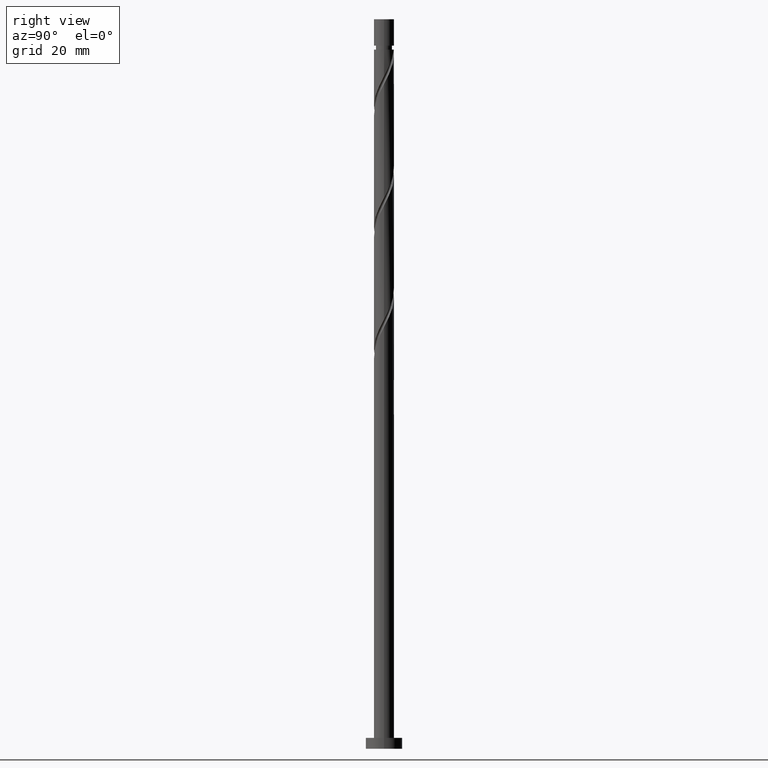
[diagram: clean part render]
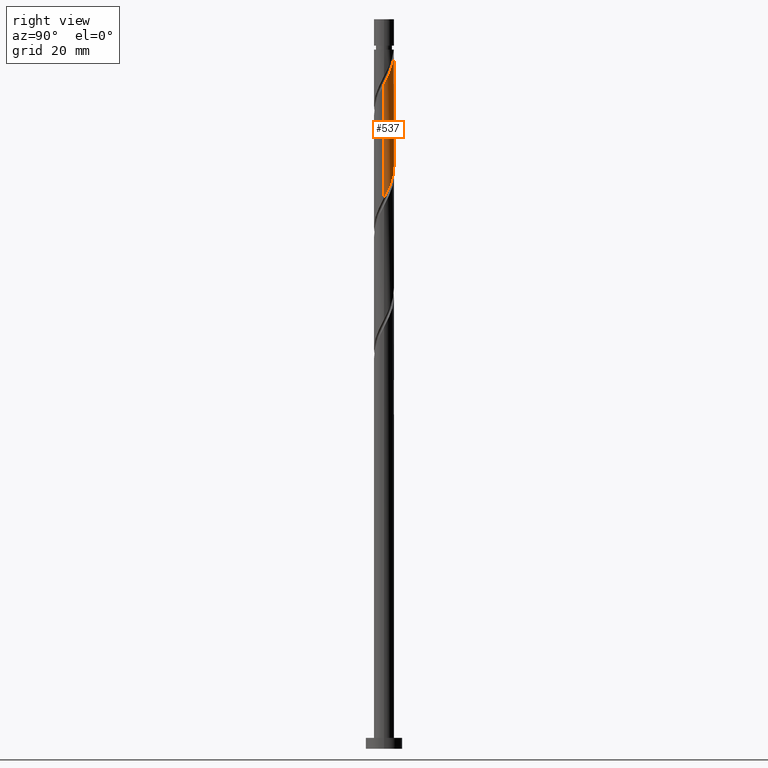
[diagram: same view with one face highlighted and labeled with its STEP entity id]
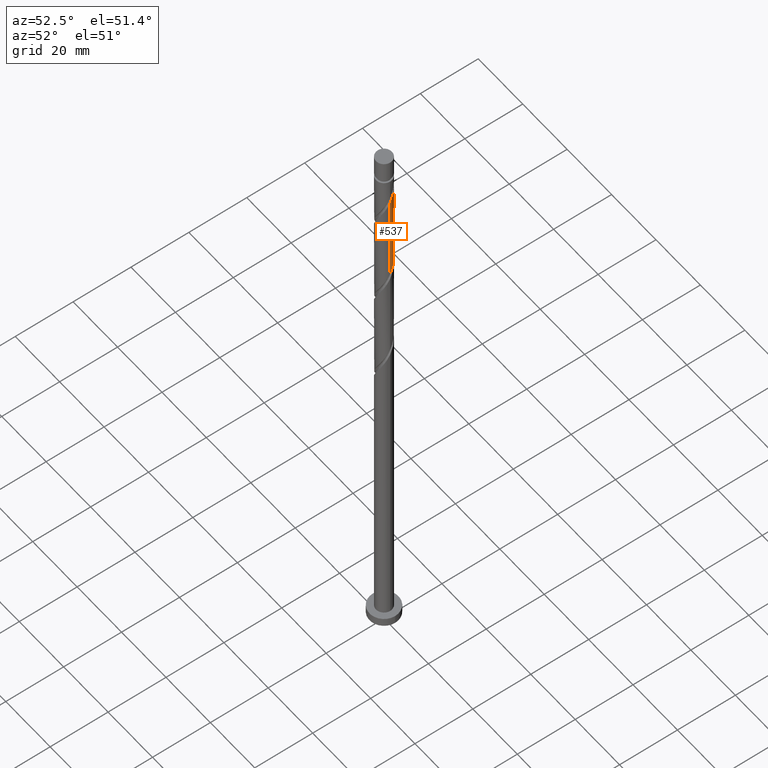
[diagram: same view with one face highlighted and labeled with its STEP entity id]
A machine part, right view. The second image highlights one B-rep face of the part: STEP entity #537.
A second angle (auxiliary view) of the same face is appended — the face is thin or edge-on in the first view.
In plain terms, the highlighted cylindrical surface (edge-blend (fillet) strip) has radius 2.75 mm, axis along (-0, -0, -1).
Its self-contained STEP definition (entity closure, byte-faithful):
#91 = CARTESIAN_POINT ( 'NONE',  ( -2.622954080360256679, 0.9020465714066743246, 165.9555286616371177 ) ) ;
#124 = VERTEX_POINT ( 'NONE', #1510 ) ;
#172 = VECTOR ( 'NONE', #1145, 1000.000000000000000 ) ;
#213 = DIRECTION ( 'NONE',  ( -0.000000000000000000, -0.000000000000000000, -1.000000000000000000 ) ) ;
#236 = CARTESIAN_POINT ( 'NONE',  ( -0.5302817939452952878, 2.722568152255369078, 160.3999731060816032 ) ) ;
#261 = CARTESIAN_POINT ( 'NONE',  ( 2.744807035947557150, 0.1689210922673411164, 151.3721953283038317 ) ) ;
#278 = CARTESIAN_POINT ( 'NONE',  ( 0.1689210922673453630, 2.744807035947560259, 190.2610842171927743 ) ) ;
#280 = FACE_OUTER_BOUND ( 'NONE', #1743, .T. ) ;
#321 = VERTEX_POINT ( 'NONE', #1159 ) ;
#374 = CARTESIAN_POINT ( 'NONE',  ( 0.1924396094106104460, 2.767045919639743445, 159.0110842171927459 ) ) ;
#375 = DIRECTION ( 'NONE',  ( -0.000000000000000000, -0.000000000000000000, -1.000000000000000000 ) ) ;
#410 = CARTESIAN_POINT ( 'NONE',  ( 2.750000000000004441, -2.841219044287791350E-16, 182.2530731175382357 ) ) ;
#415 = EDGE_CURVE ( 'NONE', #1612, #588, #1447, .T. ) ;
#450 = EDGE_CURVE ( 'NONE', #1612, #1133, #1593, .T. ) ;
#505 = CARTESIAN_POINT ( 'NONE',  ( -2.060316917994740926, 1.821426418339388675, 163.8721953283038317 ) ) ;
#515 = CARTESIAN_POINT ( 'NONE',  ( -2.461533167750521223, 1.226113560835245142, 165.2610842171927743 ) ) ;
#537 = ADVANCED_FACE ( 'NONE', ( #280 ), #1200, .T. ) ;
#539 = CARTESIAN_POINT ( 'NONE',  ( 1.820521580848700527, 2.092672286414963168, 186.7888619949704321 ) ) ;
#547 = CARTESIAN_POINT ( 'NONE',  ( 0.8735735816606146065, 2.607560008403386753, 188.8721953283039170 ) ) ;
#567 = CARTESIAN_POINT ( 'NONE',  ( 2.300112255140790651, 1.550180550263815071, 185.3999731060816032 ) ) ;
#588 = VERTEX_POINT ( 'NONE', #1131 ) ;
#630 = CARTESIAN_POINT ( 'NONE',  ( 1.226113560835246474, 2.461533167750521223, 156.9277508838594599 ) ) ;
#635 = EDGE_CURVE ( 'NONE', #321, #124, #1022, .T. ) ;
#674 = CARTESIAN_POINT ( 'NONE',  ( -2.749999999999988454, 0.000000000000000000, 191.6499731060816032 ) ) ;
#692 = CARTESIAN_POINT ( 'NONE',  ( -0.5472430904086418302, 2.695000000000002061, 191.6499731060816885 ) ) ;
#745 =( BOUNDED_CURVE ( )  B_SPLINE_CURVE ( 2, ( #410, #1739, #1094, #1217, #938, #567, #1083, #539, #1461, #971, #547, #1452, #278, #1613, #692 ),
 .UNSPECIFIED., .F., .T. ) 
 B_SPLINE_CURVE_WITH_KNOTS ( ( 3, 2, 2, 2, 2, 2, 2, 3 ),
 ( 0.6795317669814460171, 0.6875000000000000000, 0.6979166666666667407, 0.7083333333333332593, 0.7187500000000000000, 0.7291666666666667407, 0.7395833333333332593, 0.7500000000000000000 ),
 .UNSPECIFIED. ) 
 CURVE ( )  GEOMETRIC_REPRESENTATION_ITEM ( )  RATIONAL_B_SPLINE_CURVE ( ( 0.9062941362546527158, 0.9031415850403567980, 0.9090909090909321533, 0.9013135103398507431, 0.9090909090909321533, 0.9013135103398507431, 0.9090909090909321533, 0.9013135103398507431, 0.9090909090909321533, 0.9013135103398507431, 0.9090909090909321533, 0.9013135103398507431, 0.9090909090909321533, 0.9013135103398507431, 0.9090909090909321533 ) ) 
 REPRESENTATION_ITEM ( '' )  );
#770 = DIRECTION ( 'NONE',  ( -1.000000000000000000, 0.000000000000000000, 0.000000000000000000 ) ) ;
#777 = CARTESIAN_POINT ( 'NONE',  ( 2.750000000000000000, 3.367778697655221012E-16, 200.0000000000000000 ) ) ;
#791 = CARTESIAN_POINT ( 'NONE',  ( 0.5472430904086429404, 2.695000000000000284, 158.3166397727482320 ) ) ;
#839 = DIRECTION ( 'NONE',  ( -0.000000000000000000, -0.000000000000000000, -1.000000000000000000 ) ) ;
#901 = CARTESIAN_POINT ( 'NONE',  ( 0.000000000000000000, 0.000000000000000000, 191.6499731060816032 ) ) ;
#933 = CARTESIAN_POINT ( 'NONE',  ( -1.820521580848695642, 2.092672286414962723, 163.1777508838592894 ) ) ;
#938 = CARTESIAN_POINT ( 'NONE',  ( 2.461533167750526552, 1.226113560835245364, 184.7055286616372314 ) ) ;
#954 = CARTESIAN_POINT ( 'NONE',  ( 2.292612075483179801, 1.518693475112311342, 154.1499731060816032 ) ) ;
#971 = CARTESIAN_POINT ( 'NONE',  ( 1.216865369375930817, 2.492551864551399543, 188.1777508838593747 ) ) ;
#1022 = LINE ( 'NONE', #777, #1430 ) ;
#1029 = CARTESIAN_POINT ( 'NONE',  ( -1.216865369375927264, 2.492551864551396879, 161.7888619949704889 ) ) ;
#1037 = CARTESIAN_POINT ( 'NONE',  ( -2.300112255140786655, 1.550180550263814627, 164.5666397727482320 ) ) ;
#1048 = CARTESIAN_POINT ( 'NONE',  ( -2.750000000000001332, -4.897364405285564850E-15, 167.7135397612916847 ) ) ;
#1068 = CARTESIAN_POINT ( 'NONE',  ( 2.092672286414963168, 1.820521580848694976, 154.8444175505260318 ) ) ;
#1083 = CARTESIAN_POINT ( 'NONE',  ( 2.060316917994746255, 1.821426418339390008, 186.0944175505260603 ) ) ;
#1094 = CARTESIAN_POINT ( 'NONE',  ( 2.695000000000005169, 0.5472430904086422743, 183.3166397727483456 ) ) ;
#1131 = CARTESIAN_POINT ( 'NONE',  ( -2.750000000000001332, -4.897364405285564850E-15, 167.7135397612916847 ) ) ;
#1133 = VERTEX_POINT ( 'NONE', #1506 ) ;
#1145 = DIRECTION ( 'NONE',  ( -0.000000000000000000, -0.000000000000000000, -1.000000000000000000 ) ) ;
#1156 = CARTESIAN_POINT ( 'NONE',  ( -0.1689210922673423654, 2.744807035947557150, 159.7055286616372030 ) ) ;
#1159 = CARTESIAN_POINT ( 'NONE',  ( 2.750000000000004441, -2.841219044287790857E-16, 182.2530731175382357 ) ) ;
#1200 = CYLINDRICAL_SURFACE ( 'NONE', #1494, 2.750000000000000000 ) ;
#1206 = CARTESIAN_POINT ( 'NONE',  ( 2.722568152255369078, 0.5302817939452935114, 152.0666397727482888 ) ) ;
#1211 = CARTESIAN_POINT ( 'NONE',  ( 0.000000000000000000, 0.000000000000000000, 200.0000000000000000 ) ) ;
#1217 = CARTESIAN_POINT ( 'NONE',  ( 2.622954080360260676, 0.9020465714066738805, 184.0110842171926606 ) ) ;
#1288 = AXIS2_PLACEMENT_3D ( 'NONE', #901, #213, #770 ) ;
#1341 = CARTESIAN_POINT ( 'NONE',  ( 2.750000000000000888, 3.289832577596410225E-15, 151.0468730946250275 ) ) ;
#1430 = VECTOR ( 'NONE', #375, 1000.000000000000000 ) ;
#1434 = CARTESIAN_POINT ( 'NONE',  ( -2.695000000000000284, 0.5472430904086426073, 166.6499731060816316 ) ) ;
#1439 = CARTESIAN_POINT ( 'NONE',  ( -2.750000000000000000, 0.000000000000000000, 200.0000000000000000 ) ) ;
#1445 = CARTESIAN_POINT ( 'NONE',  ( -0.8735735816606112758, 2.607560008403384089, 161.0944175505260603 ) ) ;
#1447 = LINE ( 'NONE', #1439, #172 ) ;
#1452 = CARTESIAN_POINT ( 'NONE',  ( 0.5302817939452983964, 2.722568152255372631, 189.5666397727482604 ) ) ;
#1461 = CARTESIAN_POINT ( 'NONE',  ( 1.518693475112315117, 2.292612075483182910, 187.4833064394150313 ) ) ;
#1471 = ORIENTED_EDGE ( 'NONE', *, *, #635, .T. ) ;
#1494 = AXIS2_PLACEMENT_3D ( 'NONE', #1211, #839, #1671 ) ;
#1505 = EDGE_CURVE ( 'NONE', #588, #124, #1644, .T. ) ;
#1506 = CARTESIAN_POINT ( 'NONE',  ( -0.5472430904086418302, 2.695000000000002061, 191.6499731060816600 ) ) ;
#1510 = CARTESIAN_POINT ( 'NONE',  ( 2.750000000000000888, 3.289832577596409831E-15, 151.0468730946250275 ) ) ;
#1512 = ORIENTED_EDGE ( 'NONE', *, *, #415, .F. ) ;
#1518 = ORIENTED_EDGE ( 'NONE', *, *, #1505, .F. ) ;
#1530 = EDGE_CURVE ( 'NONE', #321, #1133, #745, .T. ) ;
#1564 = CARTESIAN_POINT ( 'NONE',  ( 0.9020465714066763230, 2.622954080360255791, 157.6221953283038602 ) ) ;
#1573 = CARTESIAN_POINT ( 'NONE',  ( 1.550180550263816404, 2.300112255140785766, 156.2333064394149744 ) ) ;
#1583 = CARTESIAN_POINT ( 'NONE',  ( -1.518693475112312008, 2.292612075483179801, 162.4833064394149744 ) ) ;
#1593 = CIRCLE ( 'NONE', #1288, 2.749999999999988454 ) ;
#1603 = CARTESIAN_POINT ( 'NONE',  ( 2.607560008403384089, 0.8735735816606096105, 152.7610842171927175 ) ) ;
#1612 = VERTEX_POINT ( 'NONE', #674 ) ;
#1613 = CARTESIAN_POINT ( 'NONE',  ( -0.1924396094106074206, 2.767045919639746554, 190.9555286616371461 ) ) ;
#1619 = ORIENTED_EDGE ( 'NONE', *, *, #1530, .F. ) ;
#1644 =( BOUNDED_CURVE ( )  B_SPLINE_CURVE ( 2, ( #1048, #1695, #1434, #91, #515, #1037, #505, #933, #1583, #1029, #1445, #236, #1156, #374, #791, #1564, #630, #1573, #1687, #1068, #954, #1726, #1603, #1206, #261, #1747, #1341 ),
 .UNSPECIFIED., .F., .T. ) 
 B_SPLINE_CURVE_WITH_KNOTS ( ( 3, 2, 2, 2, 2, 2, 2, 2, 2, 2, 2, 2, 2, 3 ),
 ( 0.4295317669814461281, 0.4375000000000000000, 0.4479166666666666852, 0.4583333333333333148, 0.4687500000000000000, 0.4791666666666666852, 0.4895833333333333148, 0.5000000000000000000, 0.5104166666666666297, 0.5208333333333333703, 0.5312500000000000000, 0.5416666666666666297, 0.5520833333333333703, 0.5545317669814461281 ),
 .UNSPECIFIED. ) 
 CURVE ( )  GEOMETRIC_REPRESENTATION_ITEM ( )  RATIONAL_B_SPLINE_CURVE ( ( 0.9062941362546470536, 0.9031415850403510248, 0.9090909090909264911, 0.9013135103398449699, 0.9090909090909264911, 0.9013135103398449699, 0.9090909090909264911, 0.9013135103398449699, 0.9090909090909264911, 0.9013135103398449699, 0.9090909090909264911, 0.9013135103398449699, 0.9090909090909264911, 0.9013135103398449699, 0.9090909090909264911, 0.9013135103398449699, 0.9090909090909264911, 0.9013135103398449699, 0.9090909090909264911, 0.9013135103398449699, 0.9090909090909264911, 0.9013135103398449699, 0.9090909090909264911, 0.9013135103398449699, 0.9090909090909264911, 0.9072628343904203252, 0.9062941362546469426 ) ) 
 REPRESENTATION_ITEM ( '' )  );
#1671 = DIRECTION ( 'NONE',  ( -1.000000000000000000, 0.000000000000000000, 0.000000000000000000 ) ) ;
#1678 = ORIENTED_EDGE ( 'NONE', *, *, #450, .T. ) ;
#1687 = CARTESIAN_POINT ( 'NONE',  ( 1.821426418339390008, 2.060316917994740038, 155.5388619949704605 ) ) ;
#1695 = CARTESIAN_POINT ( 'NONE',  ( -2.750000000000002220, 0.2763853991962800238, 167.1801133921024132 ) ) ;
#1726 = CARTESIAN_POINT ( 'NONE',  ( 2.492551864551397767, 1.216865369375925265, 153.4555286616371745 ) ) ;
#1739 = CARTESIAN_POINT ( 'NONE',  ( 2.750000000000005773, 0.2763853991962750278, 182.7864994867274504 ) ) ;
#1743 = EDGE_LOOP ( 'NONE', ( #1619, #1471, #1518, #1512, #1678 ) ) ;
#1747 = CARTESIAN_POINT ( 'NONE',  ( 2.750000000000000888, 0.08454036705860615286, 151.2100367826531908 ) ) ;